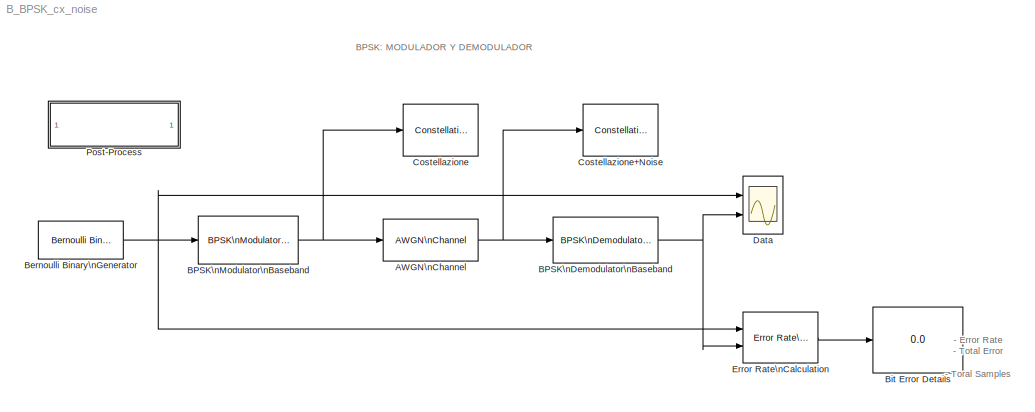
MODEL B_BPSK_cx_noise
KIND model
BLOCK [Reference] AWGN\nChannel  REF=commchan3/AWGN\nChannel
  EbNodB = 20
  EsNodB = 10
  InputProcessing = Columns as channels (frame based)
  Ports = [1, 1]
  Ps = 1
  SID = 29
  SNRdB = SNRbn
  SourceBlock = commchan3/AWGN\nChannel
  SourceType = AWGN Channel
  Tsym = 1
  UserData = DataTag0
  UserDataPersistent = on
  bitsPerSym = 1
  noiseMode = Signal to noise ratio  (SNR)
  seed = 67
  variance = 1
BLOCK [Reference] BPSK\nDemodulator\nBaseband  REF=commdigbbndpm3/BPSK\nDemodulator\nBaseband
  DecType = Hard decision
  Ph = 0
  Ports = [1, 1]
  SID = 33
  SourceBlock = commdigbbndpm3/BPSK\nDemodulator\nBaseband
  SourceType = BPSK Demodulator Baseband
  VarSource = Dialog
  Variance = 1
  derotateFactorDTMode = Same word length as input
  derotateFactorWordLen = 16
  outDtype = Inherit via internal rule
BLOCK [Reference] BPSK\nModulator\nBaseband  REF=commdigbbndpm3/BPSK\nModulator\nBaseband
  Ph = 0
  Ports = [1, 1]
  SID = 34
  SourceBlock = commdigbbndpm3/BPSK\nModulator\nBaseband
  SourceType = BPSK Modulator Baseband
  outDtype = double
  outFracLen = 15
  outFracLenMode = Best precision
  outUDDataType = sfix(16)
  outWordLen = 16
BLOCK [Reference] Bernoulli Binary\nGenerator  REF=commrandsrc2/Bernoulli Binary\nGenerator
  P = PZbn
  Ports = [0, 1]
  SID = 1
  SourceBlock = commrandsrc2/Bernoulli Binary\nGenerator
  SourceType = Bernoulli Binary Generator
  Ts = BSTbn
  frameBased = off
  orient = off
  outDataType = double
  sampPerFrame = 1
  seed = 51
BLOCK [Display] Bit Error Details
  Decimation = 1
  Ports = [1]
  SID = 30
BLOCK [ConstellationDiagram] Costellazione 
  Ports = [1]
  SID = 38
  ScopeSpecification = DataTag1
  Tag = ScatterPlot
BLOCK [ConstellationDiagram] Costellazione+Noise
  Ports = [1]
  SID = 39
  ScopeSpecification = DataTag2
  Tag = ScatterPlot
BLOCK [Scope] Data
  DataFormat = StructureWithTime
  Floating = off
  NumInputPorts = 2
  Ports = [2]
  SID = 3
  SampleTime = 0
  SaveName = ScopeData3
  ShowLegends = off
  YMax = 1.5~1.5
  YMin = -0.5~-0.5
BLOCK [Reference] Error Rate\nCalculation  REF=commsink2/Error Rate\nCalculation
  N = 0
  PMode = Port
  Ports = [2, 1]
  RsMode2 = off
  SID = 32
  SourceBlock = commsink2/Error Rate\nCalculation
  SourceType = Error Rate Calculation
  WsName = ErrorVec
  cp_mode = Entire frame
  maxBits = 1e6
  numErr = 100
  st_delay = 0
  stop = off
  subframe = []
BLOCK [SubSystem] Post-Process
  Ports = []
  RequestExecContextInheritance = off
  SID = 40
ANNOTATION (root): - Error Rate\n- Total Error\n- Toral Samples
ANNOTATION (root): BPSK: MODULADOR Y DEMODULADOR
NET AWGN\nChannel:1 -> BPSK\nDemodulator\nBaseband:1, Costellazione+Noise:1
NET BPSK\nDemodulator\nBaseband:1 -> Data:2, Error Rate\nCalculation:2
NET BPSK\nModulator\nBaseband:1 -> AWGN\nChannel:1, Costellazione :1
NET Bernoulli Binary\nGenerator:1 -> BPSK\nModulator\nBaseband:1, Data:1, Error Rate\nCalculation:1
LINE Error Rate\nCalculation:1 -> Bit Error Details:1
note: NET lines group one-source signal fan-out (src -> all destinations, sorted); 1:1 wires keep LINE
